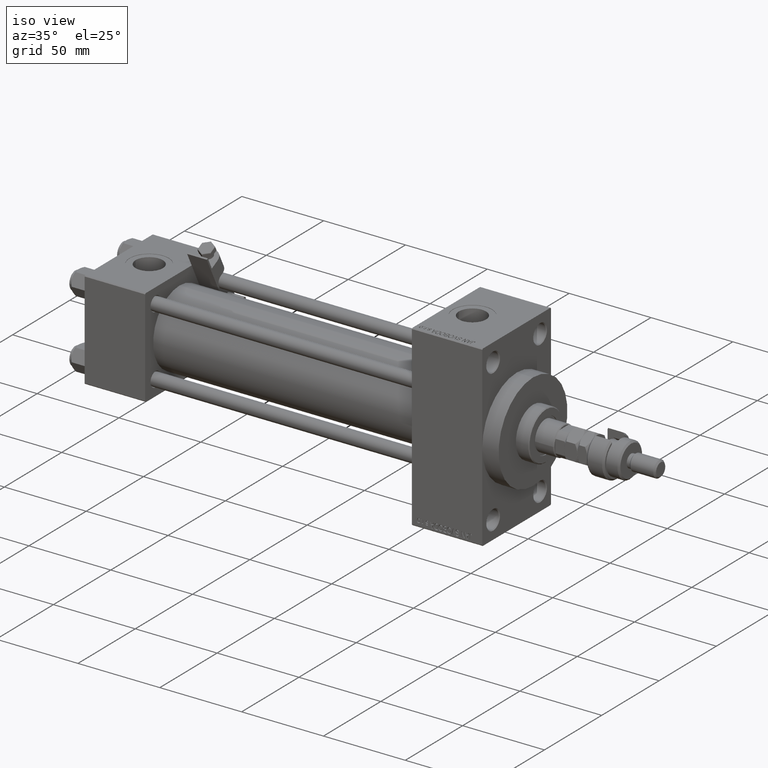
[diagram: clean part render]
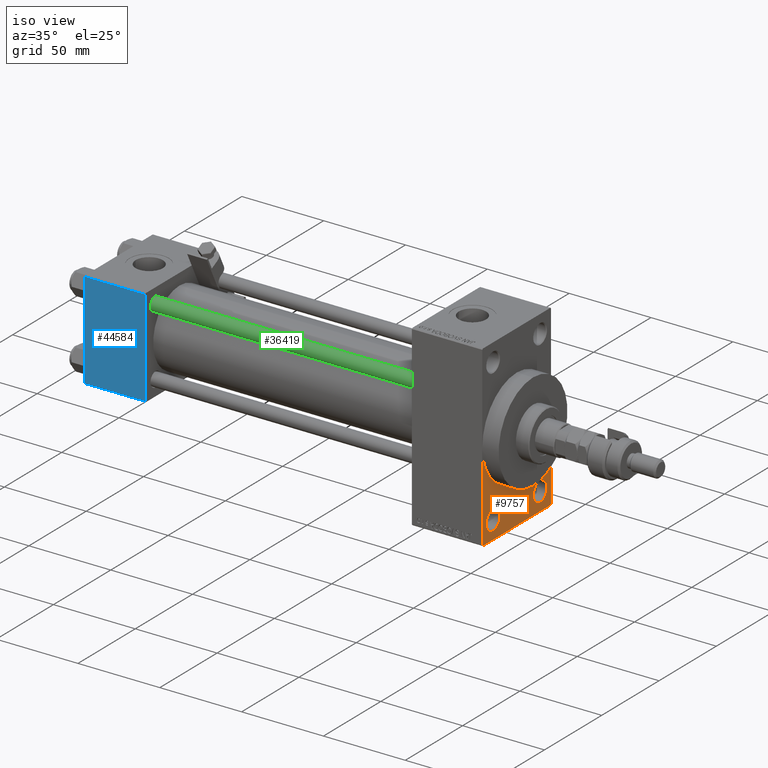
[diagram: same view with three faces highlighted in distinct colors, each labeled with its STEP entity id]
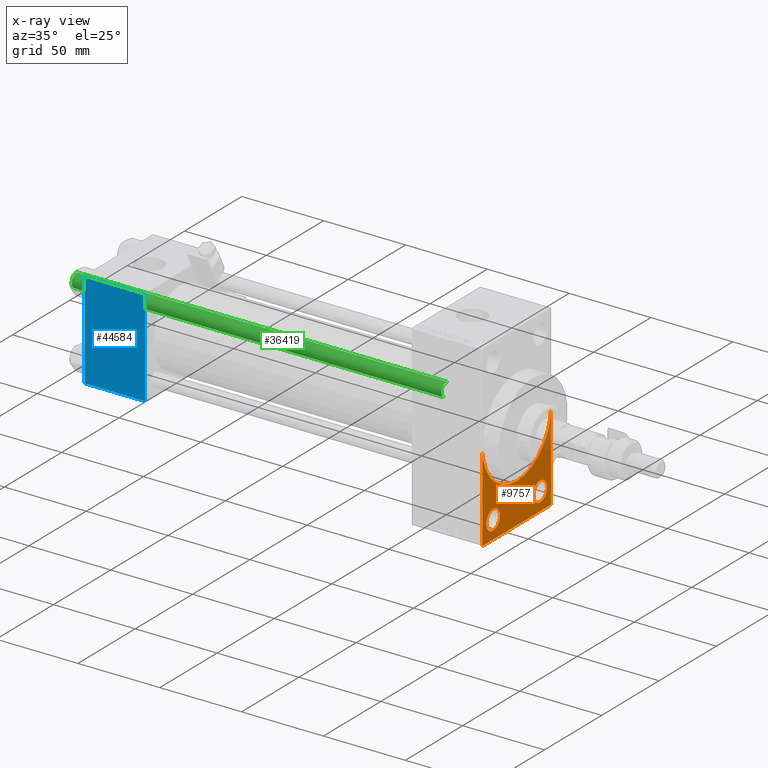
[diagram: x-ray of the same camera — body ghosted, the three highlighted faces saturated]
A machine part, iso view with three faces highlighted in distinct colors.
The next image is the same camera in x-ray (body ghosted, the three faces saturated) — at least one of them is partly hidden behind the body in this view.
Their STEP definitions:

[orange] entity #9757 — the highlighted planar face has unit normal (-1, 0, 0).
#182 = ORIENTED_EDGE ( 'NONE', *, *, #18053, .F. ) ;
#838 = CARTESIAN_POINT ( 'NONE',  ( 243.0000000000000000, -29.50000000000002842, -54.50000000000000000 ) ) ;
#1773 = DIRECTION ( 'NONE',  ( 0.000000000000000000, 0.000000000000000000, 1.000000000000000000 ) ) ;
#1915 = EDGE_CURVE ( 'NONE', #23586, #14163, #12482, .T. ) ;
#2114 = EDGE_LOOP ( 'NONE', ( #33800, #21098 ) ) ;
#2186 = DIRECTION ( 'NONE',  ( 1.000000000000000000, 0.000000000000000000, 0.000000000000000000 ) ) ;
#2298 = AXIS2_PLACEMENT_3D ( 'NONE', #37886, #50503, #13637 ) ;
#2323 = DIRECTION ( 'NONE',  ( -0.000000000000000000, 0.7071067811865672237, 0.7071067811865279218 ) ) ;
#2501 = AXIS2_PLACEMENT_3D ( 'NONE', #29119, #24562, #25106 ) ;
#3573 = CARTESIAN_POINT ( 'NONE',  ( 243.0000000000000000, -30.00000000000000000, 54.50000000000000000 ) ) ;
#3701 = CIRCLE ( 'NONE', #33773, 5.999999999999977796 ) ;
#4221 = VECTOR ( 'NONE', #51936, 1000.000000000000000 ) ;
#4553 = CARTESIAN_POINT ( 'NONE',  ( 243.0000000000000000, -30.00000000000000000, 0.000000000000000000 ) ) ;
#5796 = DIRECTION ( 'NONE',  ( -1.000000000000000000, 0.000000000000000000, -0.000000000000000000 ) ) ;
#6335 = FACE_BOUND ( 'NONE', #2114, .T. ) ;
#6662 = VERTEX_POINT ( 'NONE', #18298 ) ;
#6664 = ORIENTED_EDGE ( 'NONE', *, *, #13164, .F. ) ;
#9173 = CARTESIAN_POINT ( 'NONE',  ( 243.0000000000000000, 29.99999999999999645, 54.49999999999999289 ) ) ;
#9306 = PLANE ( 'NONE',  #39319 ) ;
#9486 = CARTESIAN_POINT ( 'NONE',  ( 243.0000000000000000, 29.99999999999999645, -54.49999999999999289 ) ) ;
#9757 = ADVANCED_FACE ( 'NONE', ( #30547, #6335, #42655 ), #9306, .F. ) ;
#10103 = DIRECTION ( 'NONE',  ( -0.000000000000000000, 0.000000000000000000, 1.000000000000000000 ) ) ;
#10139 = VERTEX_POINT ( 'NONE', #24009 ) ;
#10530 = LINE ( 'NONE', #10786, #4221 ) ;
#10786 = CARTESIAN_POINT ( 'NONE',  ( 243.0000000000000000, -29.50000000000002842, -54.50000000000000000 ) ) ;
#11673 = EDGE_CURVE ( 'NONE', #28342, #23586, #30805, .T. ) ;
#12482 = CIRCLE ( 'NONE', #31387, 30.00000000000000000 ) ;
#13164 = EDGE_CURVE ( 'NONE', #14163, #33080, #46014, .T. ) ;
#13606 = AXIS2_PLACEMENT_3D ( 'NONE', #47978, #47186, #22721 ) ;
#13637 = DIRECTION ( 'NONE',  ( 0.000000000000000000, 0.000000000000000000, 1.000000000000000000 ) ) ;
#14163 = VERTEX_POINT ( 'NONE', #49044 ) ;
#15218 = ORIENTED_EDGE ( 'NONE', *, *, #48844, .T. ) ;
#15916 = DIRECTION ( 'NONE',  ( 0.000000000000000000, 0.000000000000000000, -1.000000000000000000 ) ) ;
#16776 = VERTEX_POINT ( 'NONE', #31580 ) ;
#17726 = CARTESIAN_POINT ( 'NONE',  ( 243.0000000000000000, 29.99999999999999645, -53.99999999999999289 ) ) ;
#18053 = EDGE_CURVE ( 'NONE', #6662, #37621, #21596, .T. ) ;
#18298 = CARTESIAN_POINT ( 'NONE',  ( 243.0000000000000000, 29.49999999999996803, -54.49999999999999289 ) ) ;
#18915 = VECTOR ( 'NONE', #30202, 1000.000000000000000 ) ;
#19011 = VERTEX_POINT ( 'NONE', #19947 ) ;
#19041 = EDGE_LOOP ( 'NONE', ( #35270, #15218, #182, #38890, #6664, #50221, #27890 ) ) ;
#19947 = CARTESIAN_POINT ( 'NONE',  ( 243.0000000000000000, -30.00000000000000000, -54.00000000000001421 ) ) ;
#20324 = CIRCLE ( 'NONE', #2298, 5.999999999999977796 ) ;
#21098 = ORIENTED_EDGE ( 'NONE', *, *, #48697, .T. ) ;
#21596 = LINE ( 'NONE', #9486, #18915 ) ;
#21945 = CARTESIAN_POINT ( 'NONE',  ( 243.0000000000000000, 0.000000000000000000, 0.000000000000000000 ) ) ;
#22721 = DIRECTION ( 'NONE',  ( 0.000000000000000000, 0.000000000000000000, -1.000000000000000000 ) ) ;
#23040 = EDGE_CURVE ( 'NONE', #6662, #33080, #35404, .T. ) ;
#23586 = VERTEX_POINT ( 'NONE', #41948 ) ;
#23685 = DIRECTION ( 'NONE',  ( 0.000000000000000000, 0.000000000000000000, 1.000000000000000000 ) ) ;
#24009 = CARTESIAN_POINT ( 'NONE',  ( 243.0000000000000000, 20.50000000000000000, -37.50000000000002132 ) ) ;
#24223 = DIRECTION ( 'NONE',  ( -1.000000000000000000, 0.000000000000000000, -0.000000000000000000 ) ) ;
#24562 = DIRECTION ( 'NONE',  ( -1.000000000000000000, 0.000000000000000000, -0.000000000000000000 ) ) ;
#25106 = DIRECTION ( 'NONE',  ( 0.000000000000000000, 0.000000000000000000, 1.000000000000000000 ) ) ;
#25592 = DIRECTION ( 'NONE',  ( 0.000000000000000000, 0.000000000000000000, -1.000000000000000000 ) ) ;
#26519 = DIRECTION ( 'NONE',  ( -1.000000000000000000, 0.000000000000000000, -0.000000000000000000 ) ) ;
#26943 = CARTESIAN_POINT ( 'NONE',  ( 243.0000000000000000, 0.000000000000000000, 0.000000000000000000 ) ) ;
#27306 = EDGE_CURVE ( 'NONE', #45290, #16776, #20324, .T. ) ;
#27890 = ORIENTED_EDGE ( 'NONE', *, *, #11673, .F. ) ;
#28342 = VERTEX_POINT ( 'NONE', #4553 ) ;
#29119 = CARTESIAN_POINT ( 'NONE',  ( 243.0000000000000000, 20.50000000000000000, -43.50000000000000000 ) ) ;
#30202 = DIRECTION ( 'NONE',  ( 0.000000000000000000, -1.000000000000000000, -1.156482317317871478E-16 ) ) ;
#30547 = FACE_BOUND ( 'NONE', #48958, .T. ) ;
#30805 = CIRCLE ( 'NONE', #13606, 30.00000000000000000 ) ;
#31107 = CARTESIAN_POINT ( 'NONE',  ( 243.0000000000000000, 29.99999999999999645, -53.99999999999999289 ) ) ;
#31387 = AXIS2_PLACEMENT_3D ( 'NONE', #26943, #2186, #43329 ) ;
#31580 = CARTESIAN_POINT ( 'NONE',  ( 243.0000000000000000, -20.50000000000000000, -49.49999999999997158 ) ) ;
#32574 = EDGE_CURVE ( 'NONE', #28342, #19011, #40424, .T. ) ;
#33080 = VERTEX_POINT ( 'NONE', #17726 ) ;
#33773 = AXIS2_PLACEMENT_3D ( 'NONE', #49456, #24223, #23685 ) ;
#33800 = ORIENTED_EDGE ( 'NONE', *, *, #43089, .T. ) ;
#33868 = ORIENTED_EDGE ( 'NONE', *, *, #27306, .T. ) ;
#35270 = ORIENTED_EDGE ( 'NONE', *, *, #32574, .T. ) ;
#35404 = LINE ( 'NONE', #31107, #46937 ) ;
#36985 = CIRCLE ( 'NONE', #39558, 5.999999999999977796 ) ;
#37621 = VERTEX_POINT ( 'NONE', #838 ) ;
#37886 = CARTESIAN_POINT ( 'NONE',  ( 243.0000000000000000, -20.50000000000000000, -43.50000000000000000 ) ) ;
#38890 = ORIENTED_EDGE ( 'NONE', *, *, #23040, .T. ) ;
#39319 = AXIS2_PLACEMENT_3D ( 'NONE', #21945, #26519, #10103 ) ;
#39558 = AXIS2_PLACEMENT_3D ( 'NONE', #43170, #5796, #1773 ) ;
#39745 = ORIENTED_EDGE ( 'NONE', *, *, #51538, .T. ) ;
#40424 = LINE ( 'NONE', #3573, #41983 ) ;
#41197 = VERTEX_POINT ( 'NONE', #52464 ) ;
#41948 = CARTESIAN_POINT ( 'NONE',  ( 243.0000000000000000, 3.673940397442059178E-15, -30.00000000000000000 ) ) ;
#41983 = VECTOR ( 'NONE', #15916, 1000.000000000000000 ) ;
#42655 = FACE_OUTER_BOUND ( 'NONE', #19041, .T. ) ;
#43089 = EDGE_CURVE ( 'NONE', #41197, #10139, #3701, .T. ) ;
#43170 = CARTESIAN_POINT ( 'NONE',  ( 243.0000000000000000, -20.50000000000000000, -43.50000000000000000 ) ) ;
#43329 = DIRECTION ( 'NONE',  ( 0.000000000000000000, 0.000000000000000000, -1.000000000000000000 ) ) ;
#45290 = VERTEX_POINT ( 'NONE', #49143 ) ;
#46014 = LINE ( 'NONE', #9173, #52327 ) ;
#46937 = VECTOR ( 'NONE', #2323, 1000.000000000000000 ) ;
#47186 = DIRECTION ( 'NONE',  ( 1.000000000000000000, 0.000000000000000000, 0.000000000000000000 ) ) ;
#47978 = CARTESIAN_POINT ( 'NONE',  ( 243.0000000000000000, 0.000000000000000000, 0.000000000000000000 ) ) ;
#48697 = EDGE_CURVE ( 'NONE', #10139, #41197, #48866, .T. ) ;
#48844 = EDGE_CURVE ( 'NONE', #19011, #37621, #10530, .T. ) ;
#48866 = CIRCLE ( 'NONE', #2501, 5.999999999999977796 ) ;
#48958 = EDGE_LOOP ( 'NONE', ( #39745, #33868 ) ) ;
#49044 = CARTESIAN_POINT ( 'NONE',  ( 243.0000000000000000, 30.00000000000000000, 0.000000000000000000 ) ) ;
#49143 = CARTESIAN_POINT ( 'NONE',  ( 243.0000000000000000, -20.50000000000000000, -37.50000000000002132 ) ) ;
#49456 = CARTESIAN_POINT ( 'NONE',  ( 243.0000000000000000, 20.50000000000000000, -43.50000000000000000 ) ) ;
#50221 = ORIENTED_EDGE ( 'NONE', *, *, #1915, .F. ) ;
#50503 = DIRECTION ( 'NONE',  ( -1.000000000000000000, 0.000000000000000000, -0.000000000000000000 ) ) ;
#51538 = EDGE_CURVE ( 'NONE', #16776, #45290, #36985, .T. ) ;
#51936 = DIRECTION ( 'NONE',  ( 0.000000000000000000, 0.7071067811865352493, -0.7071067811865597852 ) ) ;
#52327 = VECTOR ( 'NONE', #25592, 1000.000000000000000 ) ;
#52464 = CARTESIAN_POINT ( 'NONE',  ( 243.0000000000000000, 20.50000000000000000, -49.49999999999997158 ) ) ;

[blue] entity #44584 — the highlighted planar face has unit normal (0, 1, 0).
#255 = CARTESIAN_POINT ( 'NONE',  ( 37.00000000000000000, -30.00000000000000000, 29.49999999999999289 ) ) ;
#480 = LINE ( 'NONE', #9068, #31035 ) ;
#506 = LINE ( 'NONE', #255, #25640 ) ;
#660 = VERTEX_POINT ( 'NONE', #21913 ) ;
#2128 = ORIENTED_EDGE ( 'NONE', *, *, #11468, .T. ) ;
#4923 = EDGE_CURVE ( 'NONE', #44133, #13450, #16287, .T. ) ;
#5272 = CARTESIAN_POINT ( 'NONE',  ( 37.00000000000000000, -30.00000000000000000, 29.99999999999999289 ) ) ;
#7246 = CARTESIAN_POINT ( 'NONE',  ( 0.000000000000000000, -30.00000000000000000, 29.99999999999999289 ) ) ;
#7343 = DIRECTION ( 'NONE',  ( -0.000000000000000000, 1.000000000000000000, 0.000000000000000000 ) ) ;
#8320 = CARTESIAN_POINT ( 'NONE',  ( 37.00000000000000000, -30.00000000000000000, -29.50000000000001776 ) ) ;
#9068 = CARTESIAN_POINT ( 'NONE',  ( 37.00000000000000000, -30.00000000000000000, -29.50000000000001776 ) ) ;
#11468 = EDGE_CURVE ( 'NONE', #660, #49157, #43828, .T. ) ;
#13450 = VERTEX_POINT ( 'NONE', #8320 ) ;
#16287 = LINE ( 'NONE', #5272, #26366 ) ;
#17879 = DIRECTION ( 'NONE',  ( 0.000000000000000000, 0.000000000000000000, -1.000000000000000000 ) ) ;
#18607 = ORIENTED_EDGE ( 'NONE', *, *, #4923, .F. ) ;
#19705 = FACE_OUTER_BOUND ( 'NONE', #33287, .T. ) ;
#20065 = EDGE_CURVE ( 'NONE', #49157, #13450, #480, .T. ) ;
#20462 = VECTOR ( 'NONE', #28222, 1000.000000000000000 ) ;
#21913 = CARTESIAN_POINT ( 'NONE',  ( 0.000000000000000000, -30.00000000000000000, 29.49999999999999289 ) ) ;
#23094 = CARTESIAN_POINT ( 'NONE',  ( 0.000000000000000000, -30.00000000000000000, -29.50000000000001776 ) ) ;
#23757 = DIRECTION ( 'NONE',  ( 0.000000000000000000, -0.000000000000000000, 1.000000000000000000 ) ) ;
#24293 = PLANE ( 'NONE',  #31238 ) ;
#24820 = CARTESIAN_POINT ( 'NONE',  ( 37.00000000000000000, -30.00000000000000000, 29.99999999999999289 ) ) ;
#25640 = VECTOR ( 'NONE', #37613, 1000.000000000000000 ) ;
#26366 = VECTOR ( 'NONE', #17879, 1000.000000000000000 ) ;
#28222 = DIRECTION ( 'NONE',  ( 0.000000000000000000, 0.000000000000000000, -1.000000000000000000 ) ) ;
#30817 = EDGE_CURVE ( 'NONE', #44133, #660, #506, .T. ) ;
#31035 = VECTOR ( 'NONE', #39100, 1000.000000000000000 ) ;
#31238 = AXIS2_PLACEMENT_3D ( 'NONE', #24820, #7343, #23757 ) ;
#32484 = CARTESIAN_POINT ( 'NONE',  ( 37.00000000000000000, -30.00000000000000000, 29.49999999999999289 ) ) ;
#33287 = EDGE_LOOP ( 'NONE', ( #2128, #37970, #18607, #43219 ) ) ;
#37613 = DIRECTION ( 'NONE',  ( -1.000000000000000000, 0.000000000000000000, 0.000000000000000000 ) ) ;
#37970 = ORIENTED_EDGE ( 'NONE', *, *, #20065, .T. ) ;
#39100 = DIRECTION ( 'NONE',  ( 1.000000000000000000, 0.000000000000000000, 0.000000000000000000 ) ) ;
#43219 = ORIENTED_EDGE ( 'NONE', *, *, #30817, .T. ) ;
#43828 = LINE ( 'NONE', #7246, #20462 ) ;
#44133 = VERTEX_POINT ( 'NONE', #32484 ) ;
#44584 = ADVANCED_FACE ( 'NONE', ( #19705 ), #24293, .F. ) ;
#49157 = VERTEX_POINT ( 'NONE', #23094 ) ;

[green] entity #36419 — the highlighted cylindrical surface (edge-blend (fillet) strip) has radius 4 mm, axis along (1, 0, 0).
#634 = DIRECTION ( 'NONE',  ( -0.000000000000000000, -0.000000000000000000, -1.000000000000000000 ) ) ;
#2216 = DIRECTION ( 'NONE',  ( -1.000000000000000000, 0.000000000000000000, 0.000000000000000000 ) ) ;
#4272 = AXIS2_PLACEMENT_3D ( 'NONE', #15890, #32055, #43896 ) ;
#5557 = ORIENTED_EDGE ( 'NONE', *, *, #49929, .T. ) ;
#5989 = VECTOR ( 'NONE', #43950, 1000.000000000000000 ) ;
#6285 = EDGE_CURVE ( 'NONE', #35198, #8985, #8269, .T. ) ;
#8269 = CIRCLE ( 'NONE', #14279, 4.000000000000000000 ) ;
#8708 = CYLINDRICAL_SURFACE ( 'NONE', #11144, 4.000000000000000000 ) ;
#8985 = VERTEX_POINT ( 'NONE', #37235 ) ;
#11120 = CARTESIAN_POINT ( 'NONE',  ( -4.000000000000000000, 0.000000000000000000, 227.0000000000000000 ) ) ;
#11144 = AXIS2_PLACEMENT_3D ( 'NONE', #25124, #634, #2216 ) ;
#11263 = DIRECTION ( 'NONE',  ( -0.000000000000000000, -0.000000000000000000, -1.000000000000000000 ) ) ;
#14279 = AXIS2_PLACEMENT_3D ( 'NONE', #25143, #36974, #16512 ) ;
#14616 = CARTESIAN_POINT ( 'NONE',  ( -4.000000000000000000, 0.000000000000000000, 226.5000000000001421 ) ) ;
#14764 = ORIENTED_EDGE ( 'NONE', *, *, #6285, .T. ) ;
#15890 = CARTESIAN_POINT ( 'NONE',  ( 0.000000000000000000, 0.000000000000000000, 226.5000000000001421 ) ) ;
#15895 = CARTESIAN_POINT ( 'NONE',  ( 4.000000000000000000, 4.898587196589411843E-16, 0.5000000000002224887 ) ) ;
#16512 = DIRECTION ( 'NONE',  ( 1.000000000000000000, 0.000000000000000000, 0.000000000000000000 ) ) ;
#16679 = EDGE_CURVE ( 'NONE', #23369, #8985, #36150, .T. ) ;
#22583 = LINE ( 'NONE', #51884, #44656 ) ;
#23167 = CIRCLE ( 'NONE', #4272, 4.000000000000000000 ) ;
#23369 = VERTEX_POINT ( 'NONE', #14616 ) ;
#25124 = CARTESIAN_POINT ( 'NONE',  ( 0.000000000000000000, 0.000000000000000000, 227.0000000000000000 ) ) ;
#25143 = CARTESIAN_POINT ( 'NONE',  ( 0.000000000000000000, 0.000000000000000000, 0.5000000000002224887 ) ) ;
#26796 = ORIENTED_EDGE ( 'NONE', *, *, #16679, .F. ) ;
#32055 = DIRECTION ( 'NONE',  ( 0.000000000000000000, 0.000000000000000000, -1.000000000000000000 ) ) ;
#35198 = VERTEX_POINT ( 'NONE', #15895 ) ;
#36150 = LINE ( 'NONE', #11120, #5989 ) ;
#36419 = ADVANCED_FACE ( 'NONE', ( #37223 ), #8708, .T. ) ;
#36567 = EDGE_CURVE ( 'NONE', #23369, #50074, #23167, .T. ) ;
#36594 = ORIENTED_EDGE ( 'NONE', *, *, #36567, .T. ) ;
#36974 = DIRECTION ( 'NONE',  ( -0.000000000000000000, -0.000000000000000000, 1.000000000000000000 ) ) ;
#37223 = FACE_OUTER_BOUND ( 'NONE', #40581, .T. ) ;
#37235 = CARTESIAN_POINT ( 'NONE',  ( -4.000000000000000000, 0.000000000000000000, 0.5000000000002224887 ) ) ;
#40581 = EDGE_LOOP ( 'NONE', ( #36594, #5557, #14764, #26796 ) ) ;
#43896 = DIRECTION ( 'NONE',  ( 1.000000000000000000, 0.000000000000000000, 0.000000000000000000 ) ) ;
#43950 = DIRECTION ( 'NONE',  ( -0.000000000000000000, -0.000000000000000000, -1.000000000000000000 ) ) ;
#44656 = VECTOR ( 'NONE', #11263, 1000.000000000000000 ) ;
#49929 = EDGE_CURVE ( 'NONE', #50074, #35198, #22583, .T. ) ;
#50074 = VERTEX_POINT ( 'NONE', #52679 ) ;
#51884 = CARTESIAN_POINT ( 'NONE',  ( 4.000000000000000000, 4.898587196589411843E-16, 227.0000000000000000 ) ) ;
#52679 = CARTESIAN_POINT ( 'NONE',  ( 4.000000000000000000, 4.898587196589411843E-16, 226.5000000000001421 ) ) ;